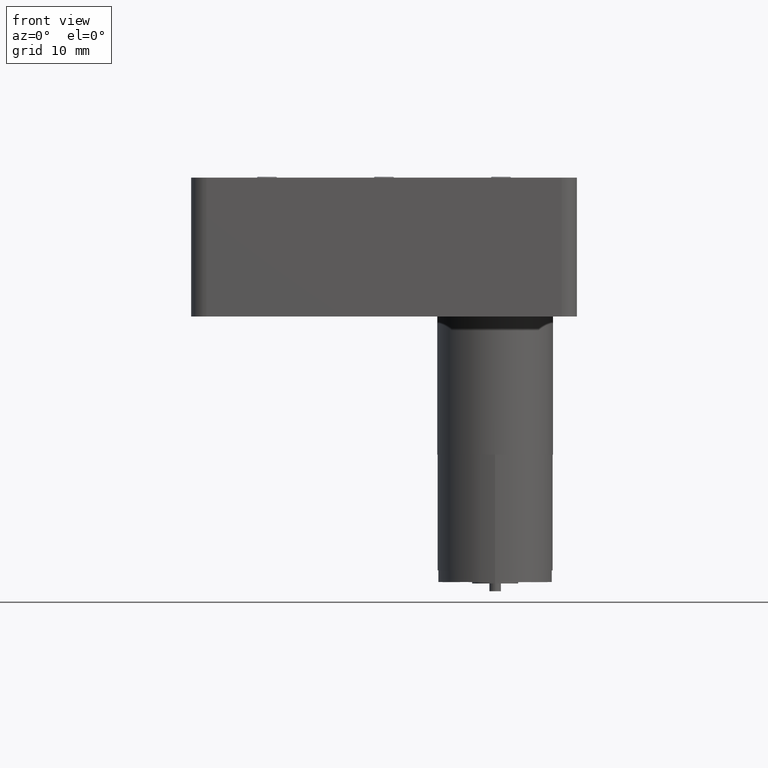
[diagram: clean part render]
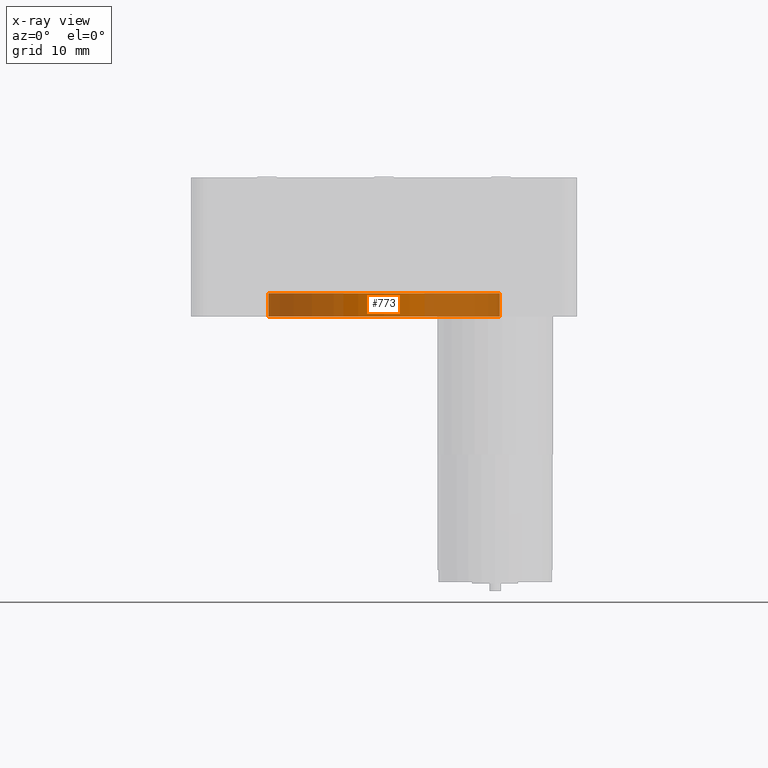
[diagram: x-ray — body ghosted, one internal face saturated and labeled with its STEP entity id]
A machine part, front view, then the same camera in x-ray: the body is ghosted and one INTERNAL B-rep face — a face not visible from any outside direction — is saturated and labeled: STEP entity #773.
In plain terms, the highlighted cylindrical surface (partial cylindrical patch) has radius 15 mm, axis along (-0, -0, -1).
Its self-contained STEP definition (entity closure, byte-faithful):
#290 = LINE ( 'NONE', #4440, #2290 ) ;
#514 = VERTEX_POINT ( 'NONE', #3928 ) ;
#529 = DIRECTION ( 'NONE',  ( -1.000000000000000000, 0.0000000000000000000, 0.0000000000000000000 ) ) ;
#773 = ADVANCED_FACE ( 'NONE', ( #5689 ), #2489, .F. ) ;
#1127 = EDGE_LOOP ( 'NONE', ( #6333, #6986, #2164, #5268 ) ) ;
#1312 = VERTEX_POINT ( 'NONE', #6160 ) ;
#1365 = DIRECTION ( 'NONE',  ( -0.0000000000000000000, -0.0000000000000000000, -1.000000000000000000 ) ) ;
#1543 = CARTESIAN_POINT ( 'NONE',  ( 24.99999999999998200, 24.99999999999999600, 0.0000000000000000000 ) ) ;
#1550 = CARTESIAN_POINT ( 'NONE',  ( 39.99999999999997900, 25.00000000000000000, -3.000000000000000000 ) ) ;
#1608 = DIRECTION ( 'NONE',  ( -0.0000000000000000000, -0.0000000000000000000, -1.000000000000000000 ) ) ;
#1619 = DIRECTION ( 'NONE',  ( 0.0000000000000000000, 0.0000000000000000000, 1.000000000000000000 ) ) ;
#1701 = CARTESIAN_POINT ( 'NONE',  ( 24.99999999999998200, 24.99999999999999600, 0.0000000000000000000 ) ) ;
#1946 = EDGE_CURVE ( 'NONE', #5302, #1312, #4628, .T. ) ;
#2164 = ORIENTED_EDGE ( 'NONE', *, *, #5124, .F. ) ;
#2290 = VECTOR ( 'NONE', #6661, 1000.000000000000000 ) ;
#2316 = EDGE_CURVE ( 'NONE', #1312, #5733, #2718, .T. ) ;
#2397 = AXIS2_PLACEMENT_3D ( 'NONE', #1701, #1608, #529 ) ;
#2407 = AXIS2_PLACEMENT_3D ( 'NONE', #1543, #1619, #6563 ) ;
#2489 = CYLINDRICAL_SURFACE ( 'NONE', #2397, 15.00000000000000000 ) ;
#2718 = LINE ( 'NONE', #5240, #5757 ) ;
#2864 = CIRCLE ( 'NONE', #5517, 15.00000000000000000 ) ;
#2874 = DIRECTION ( 'NONE',  ( 0.0000000000000000000, 0.0000000000000000000, 1.000000000000000000 ) ) ;
#2888 = EDGE_CURVE ( 'NONE', #5302, #514, #290, .T. ) ;
#3928 = CARTESIAN_POINT ( 'NONE',  ( 9.999999999999980500, 24.99999999999999600, -3.000000000000000000 ) ) ;
#4440 = CARTESIAN_POINT ( 'NONE',  ( 9.999999999999980500, 24.99999999999999600, 0.0000000000000000000 ) ) ;
#4580 = CARTESIAN_POINT ( 'NONE',  ( 24.99999999999998200, 24.99999999999999600, -3.000000000000000000 ) ) ;
#4628 = CIRCLE ( 'NONE', #2407, 15.00000000000000000 ) ;
#5124 = EDGE_CURVE ( 'NONE', #514, #5733, #2864, .T. ) ;
#5240 = CARTESIAN_POINT ( 'NONE',  ( 39.99999999999997900, 25.00000000000000000, 0.0000000000000000000 ) ) ;
#5268 = ORIENTED_EDGE ( 'NONE', *, *, #2888, .F. ) ;
#5302 = VERTEX_POINT ( 'NONE', #6377 ) ;
#5517 = AXIS2_PLACEMENT_3D ( 'NONE', #4580, #2874, #6757 ) ;
#5689 = FACE_OUTER_BOUND ( 'NONE', #1127, .T. ) ;
#5733 = VERTEX_POINT ( 'NONE', #1550 ) ;
#5757 = VECTOR ( 'NONE', #1365, 1000.000000000000000 ) ;
#6160 = CARTESIAN_POINT ( 'NONE',  ( 39.99999999999997900, 25.00000000000000000, 0.0000000000000000000 ) ) ;
#6333 = ORIENTED_EDGE ( 'NONE', *, *, #1946, .T. ) ;
#6377 = CARTESIAN_POINT ( 'NONE',  ( 9.999999999999980500, 24.99999999999999600, 0.0000000000000000000 ) ) ;
#6563 = DIRECTION ( 'NONE',  ( 1.000000000000000000, 0.0000000000000000000, 0.0000000000000000000 ) ) ;
#6661 = DIRECTION ( 'NONE',  ( -0.0000000000000000000, -0.0000000000000000000, -1.000000000000000000 ) ) ;
#6757 = DIRECTION ( 'NONE',  ( 1.000000000000000000, 0.0000000000000000000, 0.0000000000000000000 ) ) ;
#6986 = ORIENTED_EDGE ( 'NONE', *, *, #2316, .T. ) ;